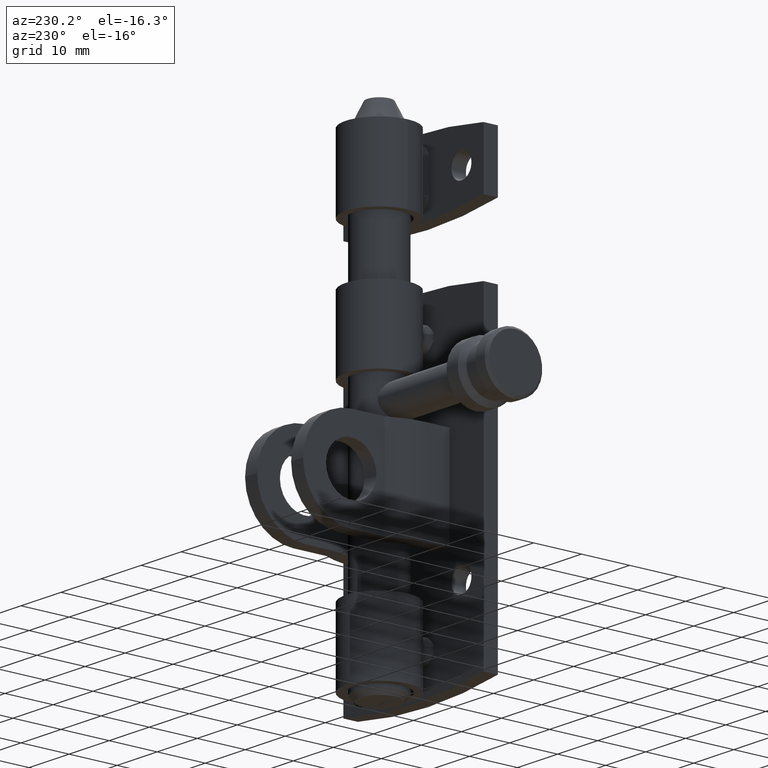
[diagram: clean part render]
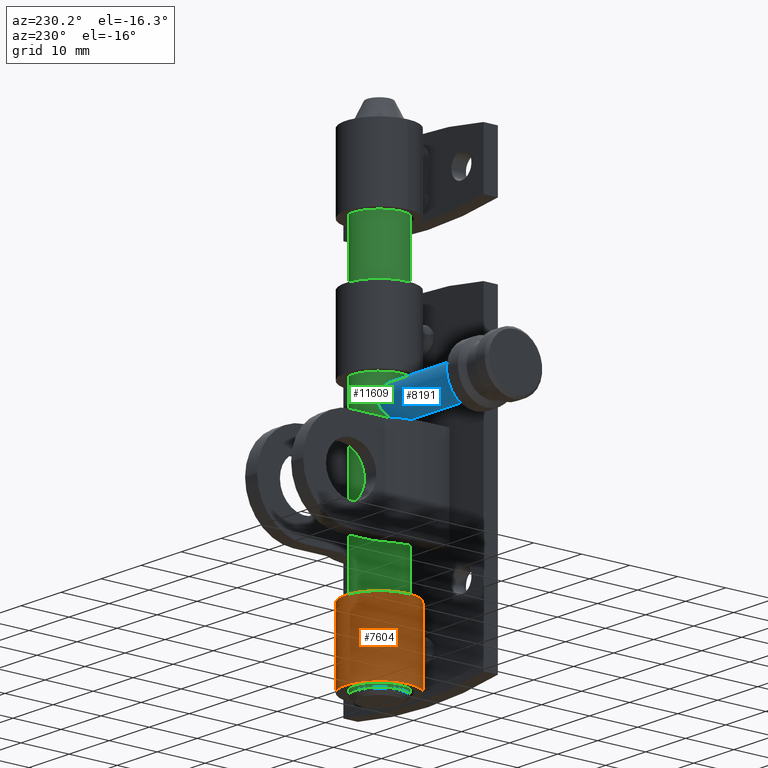
[diagram: same view with three faces highlighted in distinct colors, each labeled with its STEP entity id]
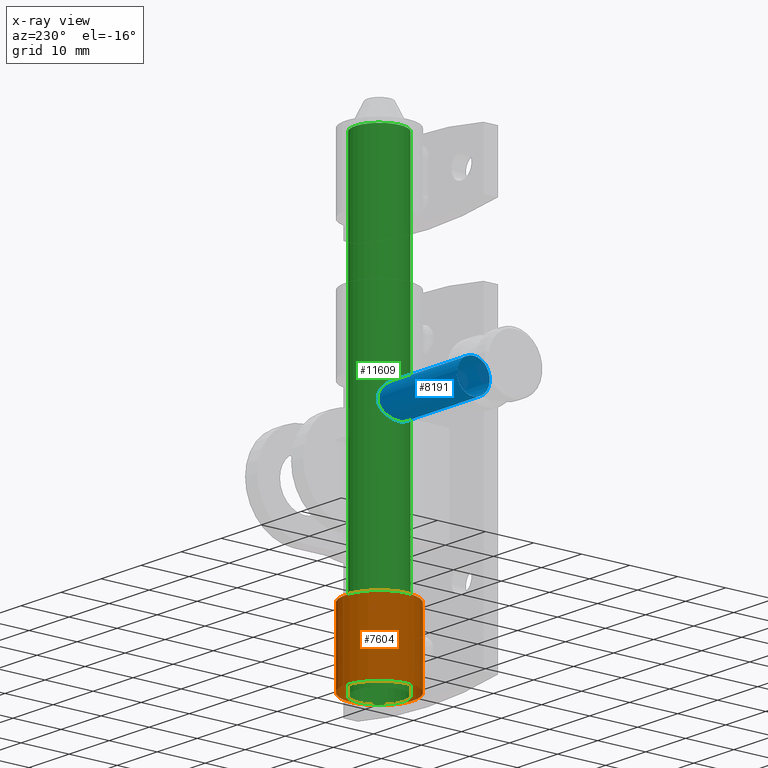
[diagram: x-ray of the same camera — body ghosted, the three highlighted faces saturated]
A machine part, auxiliary view with three faces highlighted in distinct colors.
The next image is the same camera in x-ray (body ghosted, the three faces saturated) — at least one of them is partly hidden behind the body in this view.
Their STEP definitions:

[orange] entity #7604 — the highlighted cylindrical surface (bore or boss wall) has radius 7 mm, axis along (0, 0, 1).
#38 = CARTESIAN_POINT ( 'NONE',  ( 2.363585179769313260, 0.5094752459823461699, -28.50000000000001421 ) ) ;
#343 = CARTESIAN_POINT ( 'NONE',  ( -3.458419704824095664, 1.012777841356176767, -28.03980706288667690 ) ) ;
#375 = CARTESIAN_POINT ( 'NONE',  ( 4.280624791019803865, 1.558566044828566755, -26.98556475810323008 ) ) ;
#405 = CARTESIAN_POINT ( 'NONE',  ( -3.559248018156697224, 1.071434367228733864, -24.04949530744585928 ) ) ;
#764 = CARTESIAN_POINT ( 'NONE',  ( -2.224390284590544997, 0.4628253102830562349, -23.50000000000000355 ) ) ;
#1003 = ORIENTED_EDGE ( 'NONE', *, *, #2694, .T. ) ;
#1103 = LINE ( 'NONE', #14857, #10214 ) ;
#1104 = CARTESIAN_POINT ( 'NONE',  ( 3.458419704824096552, 1.012777841356176989, -23.96019293711333376 ) ) ;
#1109 = EDGE_CURVE ( 'NONE', #13167, #7150, #6363, .T. ) ;
#1145 = AXIS2_PLACEMENT_3D ( 'NONE', #3059, #4227, #14735 ) ;
#1203 = EDGE_CURVE ( 'NONE', #13167, #3659, #11703, .T. ) ;
#1455 = CARTESIAN_POINT ( 'NONE',  ( -3.458395220680591908, 1.012763973289264818, -23.96017281296050427 ) ) ;
#1475 = CARTESIAN_POINT ( 'NONE',  ( 3.130135115788539313, 0.8373920727866632774, -28.26634918414662678 ) ) ;
#1508 = CARTESIAN_POINT ( 'NONE',  ( -4.528917503112638521, 1.762500000000001066, -25.50000000000000355 ) ) ;
#1527 = CARTESIAN_POINT ( 'NONE',  ( 3.995513635946405628, 1.349599173450029665, -27.44784056243527814 ) ) ;
#1587 = DIRECTION ( 'NONE',  ( -0.000000000000000000, -0.000000000000000000, 1.000000000000000000 ) ) ;
#1653 = CARTESIAN_POINT ( 'NONE',  ( -2.887851034399280703, 0.7220441376547444001, -28.38026617628249682 ) ) ;
#1945 = VERTEX_POINT ( 'NONE', #9450 ) ;
#2316 = CARTESIAN_POINT ( 'NONE',  ( 2.887851034399280703, 0.7220441376547444001, -23.61973382371750674 ) ) ;
#2513 = CARTESIAN_POINT ( 'NONE',  ( 4.528917503112636744, 1.762500000000000400, -25.50000000000000355 ) ) ;
#2559 = FACE_OUTER_BOUND ( 'NONE', #10187, .T. ) ;
#2625 = CARTESIAN_POINT ( 'NONE',  ( -3.559273528341181603, 1.071449405073602312, -27.95048115225854701 ) ) ;
#2649 = CARTESIAN_POINT ( 'NONE',  ( 2.498334539549156741, 0.5594928337550739705, -28.48433027257622996 ) ) ;
#2694 = EDGE_CURVE ( 'NONE', #14448, #7150, #5086, .T. ) ;
#2722 = DIRECTION ( 'NONE',  ( -0.000000000000000000, -0.000000000000000000, 1.000000000000000000 ) ) ;
#2727 = CARTESIAN_POINT ( 'NONE',  ( -2.498334539549156297, 0.5594928337550738595, -23.51566972742377359 ) ) ;
#2789 = CARTESIAN_POINT ( 'NONE',  ( -4.406517590014707331, 1.658642555726712153, -25.25731105585256486 ) ) ;
#2848 = B_SPLINE_CURVE_WITH_KNOTS ( 'NONE', 3,
 ( #14434, #9313, #375, #1527, #3563, #8542, #14324, #13992, #1475, #9628, #6168, #2649, #38, #7075 ),
 .UNSPECIFIED., .F., .F.,
 ( 4, 2, 2, 2, 2, 2, 4 ),
 ( -8.944272078837966095E-06, 0.0008639785485700239879, 0.001736901369218885830, 0.002173362779543319950, 0.002609824189867754503, 0.003046285600192189056, 0.003482747010516623609 ),
 .UNSPECIFIED. ) ;
#2862 = CARTESIAN_POINT ( 'NONE',  ( -2.224390284590544997, 0.4628253102830562349, -28.50000000000000355 ) ) ;
#2928 = FACE_OUTER_BOUND ( 'NONE', #8429, .T. ) ;
#3059 = CARTESIAN_POINT ( 'NONE',  ( 0.000000000000000000, 7.100000000000000533, -23.50000000000000355 ) ) ;
#3098 = CARTESIAN_POINT ( 'NONE',  ( 0.000000000000000000, 7.100000000000000533, -33.50000000000000000 ) ) ;
#3141 = ORIENTED_EDGE ( 'NONE', *, *, #7304, .T. ) ;
#3226 = VERTEX_POINT ( 'NONE', #8095 ) ;
#3397 = CARTESIAN_POINT ( 'NONE',  ( 4.468276139286970761, 1.711045248891302162, -25.37976308000805759 ) ) ;
#3563 = CARTESIAN_POINT ( 'NONE',  ( 3.837851370702710430, 1.241817941551478954, -27.66471111683637218 ) ) ;
#3659 = VERTEX_POINT ( 'NONE', #2513 ) ;
#3701 = B_SPLINE_CURVE_WITH_KNOTS ( 'NONE', 3,
 ( #8242, #10673, #5125, #6133, #1653, #11998, #11947, #343, #2625, #10779, #9650, #9711, #3785, #6241, #5009, #6348 ),
 .UNSPECIFIED., .F., .F.,
 ( 4, 2, 2, 2, 2, 2, 2, 4 ),
 ( 0.000000000000000000, 0.0004324776792570255313, 0.0008649553585140510627, 0.001297433037771076377, 0.001729910717028101909, 0.002594866075542159693, 0.003027343754799188477, 0.003459821434056217261 ),
 .UNSPECIFIED. ) ;
#3725 = AXIS2_PLACEMENT_3D ( 'NONE', #14447, #1587, #7422 ) ;
#3785 = CARTESIAN_POINT ( 'NONE',  ( -4.276471465520668147, 1.557566174956938054, -26.98255586031591946 ) ) ;
#3840 = DIRECTION ( 'NONE',  ( 0.000000000000000000, 0.000000000000000000, -1.000000000000000000 ) ) ;
#3919 = AXIS2_PLACEMENT_3D ( 'NONE', #13223, #3840, #6187 ) ;
#4049 = VECTOR ( 'NONE', #2722, 1000.000000000000000 ) ;
#4156 = EDGE_CURVE ( 'NONE', #10348, #1945, #2848, .T. ) ;
#4192 = CIRCLE ( 'NONE', #14666, 7.000000000000000888 ) ;
#4221 = ORIENTED_EDGE ( 'NONE', *, *, #4956, .T. ) ;
#4227 = DIRECTION ( 'NONE',  ( 0.000000000000000000, 0.000000000000000000, -1.000000000000000000 ) ) ;
#4268 = DIRECTION ( 'NONE',  ( 1.000000000000000000, 0.000000000000000000, 0.000000000000000000 ) ) ;
#4599 = ORIENTED_EDGE ( 'NONE', *, *, #9192, .F. ) ;
#4714 = CARTESIAN_POINT ( 'NONE',  ( 3.130154462453922370, 0.8374016877908414536, -23.73366136649310931 ) ) ;
#4807 = CARTESIAN_POINT ( 'NONE',  ( 4.528917503112636744, 1.762500000000000400, -26.50000000000000355 ) ) ;
#4902 = VERTEX_POINT ( 'NONE', #9957 ) ;
#4956 = EDGE_CURVE ( 'NONE', #12518, #3226, #3701, .T. ) ;
#4978 = CARTESIAN_POINT ( 'NONE',  ( -3.995513635946405628, 1.349599173450029443, -24.55215943756472896 ) ) ;
#5009 = CARTESIAN_POINT ( 'NONE',  ( -4.468276139287460147, 1.711045248891718273, -26.62023691999236519 ) ) ;
#5010 = EDGE_CURVE ( 'NONE', #1945, #12518, #9749, .T. ) ;
#5020 = CARTESIAN_POINT ( 'NONE',  ( -2.363585179769311484, 0.5094752459823458368, -23.49999999999999645 ) ) ;
#5086 = B_SPLINE_CURVE_WITH_KNOTS ( 'NONE', 3,
 ( #1508, #2789, #7490, #4978, #7392, #405, #1455, #14349, #10839, #6200, #12010, #2727, #5020, #764 ),
 .UNSPECIFIED., .F., .F.,
 ( 4, 2, 2, 2, 2, 2, 4 ),
 ( -8.944272078844935482E-06, 0.0008639785485700187838, 0.001736901369218882361, 0.002173362779543317348, 0.002609824189867752334, 0.003046285600192187321, 0.003482747010516622308 ),
 .UNSPECIFIED. ) ;
#5125 = CARTESIAN_POINT ( 'NONE',  ( -2.498340916448145599, 0.5594952002343208664, -28.48432953796115541 ) ) ;
#5270 = CARTESIAN_POINT ( 'NONE',  ( 0.000000000000000000, 7.100000000000000533, -18.50000000000000355 ) ) ;
#5787 = CARTESIAN_POINT ( 'NONE',  ( 3.559273528341181603, 1.071449405073602534, -24.04951884774146365 ) ) ;
#6066 = ORIENTED_EDGE ( 'NONE', *, *, #14534, .F. ) ;
#6133 = CARTESIAN_POINT ( 'NONE',  ( -2.759887783115243298, 0.6654891564961926687, -28.42479396939429037 ) ) ;
#6168 = CARTESIAN_POINT ( 'NONE',  ( 2.759875598197542246, 0.6654840006664615171, -28.42479745993019691 ) ) ;
#6187 = DIRECTION ( 'NONE',  ( -1.000000000000000000, 0.000000000000000000, 0.000000000000000000 ) ) ;
#6200 = CARTESIAN_POINT ( 'NONE',  ( -2.887835988744141602, 0.7220373789742225989, -23.61972820379545013 ) ) ;
#6241 = CARTESIAN_POINT ( 'NONE',  ( -4.405669549760810710, 1.659700677471473984, -26.74262983835808782 ) ) ;
#6348 = CARTESIAN_POINT ( 'NONE',  ( -4.528917503112638521, 1.762500000000001066, -26.50000000000000355 ) ) ;
#6363 = CIRCLE ( 'NONE', #1145, 7.000000000000000888 ) ;
#6789 = CARTESIAN_POINT ( 'NONE',  ( 2.224390284590544997, 0.4628253102830562349, -23.50000000000000355 ) ) ;
#6964 = CARTESIAN_POINT ( 'NONE',  ( 4.405669549760809822, 1.659700677471473540, -25.25737016164192283 ) ) ;
#7009 = CARTESIAN_POINT ( 'NONE',  ( 2.498340916448144711, 0.5594952002343208664, -23.51567046203884814 ) ) ;
#7046 = ORIENTED_EDGE ( 'NONE', *, *, #4156, .T. ) ;
#7075 = CARTESIAN_POINT ( 'NONE',  ( 2.224390284590544997, 0.4628253102830562349, -28.50000000000000355 ) ) ;
#7120 = CARTESIAN_POINT ( 'NONE',  ( 3.995542786044163464, 1.349619360536337576, -24.55220116446224665 ) ) ;
#7150 = VERTEX_POINT ( 'NONE', #9671 ) ;
#7151 = LINE ( 'NONE', #13177, #4049 ) ;
#7304 = EDGE_CURVE ( 'NONE', #11639, #11639, #10405, .T. ) ;
#7312 = CARTESIAN_POINT ( 'NONE',  ( -4.528917503112638521, 1.762500000000001066, -25.50000000000000355 ) ) ;
#7392 = CARTESIAN_POINT ( 'NONE',  ( -3.837851370702711318, 1.241817941551479842, -24.33528888316363137 ) ) ;
#7422 = DIRECTION ( 'NONE',  ( 1.000000000000000000, 0.000000000000000000, 0.000000000000000000 ) ) ;
#7490 = CARTESIAN_POINT ( 'NONE',  ( -4.280624791019802977, 1.558566044828565866, -25.01443524189676992 ) ) ;
#7604 = ADVANCED_FACE ( 'NONE', ( #14968, #2559, #2928 ), #8799, .T. ) ;
#8048 = CARTESIAN_POINT ( 'NONE',  ( 4.209377954758648954, 1.506347602196852042, -24.89891924608211582 ) ) ;
#8095 = CARTESIAN_POINT ( 'NONE',  ( -4.528917503112638521, 1.762500000000001066, -26.50000000000000355 ) ) ;
#8242 = CARTESIAN_POINT ( 'NONE',  ( -2.224390284590544997, 0.4628253102830562349, -28.50000000000000355 ) ) ;
#8390 = EDGE_LOOP ( 'NONE', ( #10716, #4221, #12720, #1003, #8678, #8635, #4599, #7046 ) ) ;
#8429 = EDGE_LOOP ( 'NONE', ( #3141 ) ) ;
#8542 = CARTESIAN_POINT ( 'NONE',  ( 3.559248018156698112, 1.071434367228733642, -27.95050469255413006 ) ) ;
#8635 = ORIENTED_EDGE ( 'NONE', *, *, #1203, .T. ) ;
#8678 = ORIENTED_EDGE ( 'NONE', *, *, #1109, .F. ) ;
#8799 = CYLINDRICAL_SURFACE ( 'NONE', #3725, 7.000000000000000000 ) ;
#9192 = EDGE_CURVE ( 'NONE', #10348, #3659, #1103, .T. ) ;
#9205 = CARTESIAN_POINT ( 'NONE',  ( 4.528917503112636744, 1.762500000000000400, -25.50000000000000355 ) ) ;
#9254 = CARTESIAN_POINT ( 'NONE',  ( 3.837879440794320640, 1.241836234921464666, -24.33532293532686097 ) ) ;
#9313 = CARTESIAN_POINT ( 'NONE',  ( 4.406517590013753427, 1.658642555725903023, -26.74268894414661091 ) ) ;
#9450 = CARTESIAN_POINT ( 'NONE',  ( 2.224390284590544997, 0.4628253102830562349, -28.50000000000000355 ) ) ;
#9628 = CARTESIAN_POINT ( 'NONE',  ( 2.887835988744141602, 0.7220373789742227100, -28.38027179620454632 ) ) ;
#9650 = CARTESIAN_POINT ( 'NONE',  ( -3.995542786044163464, 1.349619360536338242, -27.44779883553776045 ) ) ;
#9671 = CARTESIAN_POINT ( 'NONE',  ( -2.224390284590544997, 0.4628253102830562349, -23.50000000000000355 ) ) ;
#9711 = CARTESIAN_POINT ( 'NONE',  ( -4.209377954758648066, 1.506347602196852264, -27.10108075391789129 ) ) ;
#9749 = CIRCLE ( 'NONE', #3919, 7.000000000000000888 ) ;
#9957 = CARTESIAN_POINT ( 'NONE',  ( 7.000000000000000888, 7.100000000000000533, -18.50000000000000355 ) ) ;
#10158 = DIRECTION ( 'NONE',  ( 1.000000000000000000, 0.000000000000000000, 0.000000000000000000 ) ) ;
#10187 = EDGE_LOOP ( 'NONE', ( #6066 ) ) ;
#10214 = VECTOR ( 'NONE', #14804, 1000.000000000000000 ) ;
#10348 = VERTEX_POINT ( 'NONE', #4807 ) ;
#10372 = CARTESIAN_POINT ( 'NONE',  ( 2.759887783115242410, 0.6654891564961924466, -23.57520603060572029 ) ) ;
#10405 = CIRCLE ( 'NONE', #13108, 7.000000000000000888 ) ;
#10673 = CARTESIAN_POINT ( 'NONE',  ( -2.363588472702890186, 0.5094763495798555475, -28.50000000000000711 ) ) ;
#10716 = ORIENTED_EDGE ( 'NONE', *, *, #5010, .T. ) ;
#10779 = CARTESIAN_POINT ( 'NONE',  ( -3.837879440794323305, 1.241836234921464222, -27.66467706467314258 ) ) ;
#10839 = CARTESIAN_POINT ( 'NONE',  ( -3.130135115788537981, 0.8373920727866628333, -23.73365081585338388 ) ) ;
#11007 = DIRECTION ( 'NONE',  ( -0.000000000000000000, -0.000000000000000000, 1.000000000000000000 ) ) ;
#11201 = DIRECTION ( 'NONE',  ( -0.000000000000000000, -0.000000000000000000, 1.000000000000000000 ) ) ;
#11639 = VERTEX_POINT ( 'NONE', #13427 ) ;
#11703 = B_SPLINE_CURVE_WITH_KNOTS ( 'NONE', 3,
 ( #15131, #15083, #7009, #10372, #2316, #4714, #14038, #1104, #5787, #9254, #7120, #8048, #14094, #6964, #3397, #9205 ),
 .UNSPECIFIED., .F., .F.,
 ( 4, 2, 2, 2, 2, 2, 2, 4 ),
 ( 0.000000000000000000, 0.0004324776792570246640, 0.0008649553585140493280, 0.001297433037771073992, 0.001729910717028098656, 0.002594866075542155790, 0.003027343754799184574, 0.003459821434056214225 ),
 .UNSPECIFIED. ) ;
#11947 = CARTESIAN_POINT ( 'NONE',  ( -3.243790894517545098, 0.8957465319310968788, -28.19763183188897315 ) ) ;
#11998 = CARTESIAN_POINT ( 'NONE',  ( -3.130154462453921926, 0.8374016877908414536, -28.26633863350690845 ) ) ;
#12010 = CARTESIAN_POINT ( 'NONE',  ( -2.759875598197542690, 0.6654840006664615171, -23.57520254006980309 ) ) ;
#12518 = VERTEX_POINT ( 'NONE', #2862 ) ;
#12720 = ORIENTED_EDGE ( 'NONE', *, *, #13641, .T. ) ;
#13108 = AXIS2_PLACEMENT_3D ( 'NONE', #3098, #11201, #4268 ) ;
#13167 = VERTEX_POINT ( 'NONE', #6789 ) ;
#13177 = CARTESIAN_POINT ( 'NONE',  ( -4.528917503112638521, 1.762500000000001066, -28.50000000000000355 ) ) ;
#13223 = CARTESIAN_POINT ( 'NONE',  ( 0.000000000000000000, 7.100000000000000533, -28.50000000000000355 ) ) ;
#13427 = CARTESIAN_POINT ( 'NONE',  ( 7.000000000000000888, 7.100000000000000533, -33.50000000000000000 ) ) ;
#13641 = EDGE_CURVE ( 'NONE', #3226, #14448, #7151, .T. ) ;
#13992 = CARTESIAN_POINT ( 'NONE',  ( 3.243769682286799405, 0.8957354831061201672, -28.19764530957558080 ) ) ;
#14038 = CARTESIAN_POINT ( 'NONE',  ( 3.243790894517544654, 0.8957465319310969898, -23.80236816811103751 ) ) ;
#14094 = CARTESIAN_POINT ( 'NONE',  ( 4.276471465520670812, 1.557566174956939165, -25.01744413968409830 ) ) ;
#14324 = CARTESIAN_POINT ( 'NONE',  ( 3.458395220680591908, 1.012763973289265262, -28.03982718703949928 ) ) ;
#14349 = CARTESIAN_POINT ( 'NONE',  ( -3.243769682286799849, 0.8957354831061199452, -23.80235469042442276 ) ) ;
#14434 = CARTESIAN_POINT ( 'NONE',  ( 4.528917503112636744, 1.762500000000000400, -26.50000000000000355 ) ) ;
#14447 = CARTESIAN_POINT ( 'NONE',  ( 0.000000000000000000, 7.100000000000000533, -28.50000000000000355 ) ) ;
#14448 = VERTEX_POINT ( 'NONE', #7312 ) ;
#14534 = EDGE_CURVE ( 'NONE', #4902, #4902, #4192, .T. ) ;
#14666 = AXIS2_PLACEMENT_3D ( 'NONE', #5270, #11007, #10158 ) ;
#14735 = DIRECTION ( 'NONE',  ( -1.000000000000000000, 0.000000000000000000, 0.000000000000000000 ) ) ;
#14804 = DIRECTION ( 'NONE',  ( -0.000000000000000000, -0.000000000000000000, 1.000000000000000000 ) ) ;
#14857 = CARTESIAN_POINT ( 'NONE',  ( 4.528917503112636744, 1.762500000000000400, -28.50000000000000355 ) ) ;
#14968 = FACE_BOUND ( 'NONE', #8390, .T. ) ;
#15083 = CARTESIAN_POINT ( 'NONE',  ( 2.363588472702888854, 0.5094763495798554365, -23.50000000000000711 ) ) ;
#15131 = CARTESIAN_POINT ( 'NONE',  ( 2.224390284590544997, 0.4628253102830562349, -23.50000000000000355 ) ) ;

[blue] entity #8191 — the highlighted cylindrical surface (bore or boss wall) has radius 3.4 mm, axis along (1, 0, 0).
#435 = CARTESIAN_POINT ( 'NONE',  ( -4.874957418596305381, 1.131198138601541725, 4.213970025762326266 ) ) ;
#447 = DIRECTION ( 'NONE',  ( 1.000000000000000000, -0.000000000000000000, -8.673617379884034239E-17 ) ) ;
#485 = CARTESIAN_POINT ( 'NONE',  ( -4.921394783119087180, 0.9117452428491202854, 4.283489538329996016 ) ) ;
#588 = CARTESIAN_POINT ( 'NONE',  ( -3.830215981836359695, 3.215830662909556992, -0.1255042906919718870 ) ) ;
#609 = CARTESIAN_POINT ( 'NONE',  ( -5.000000000000000000, 0.000000000000000000, 4.400000000000001243 ) ) ;
#637 = CARTESIAN_POINT ( 'NONE',  ( -4.463013636203264412, 2.260821978755102268, 3.548475396443623087 ) ) ;
#1075 = FACE_OUTER_BOUND ( 'NONE', #14973, .T. ) ;
#1097 = DIRECTION ( 'NONE',  ( 1.000000000000000000, 0.000000000000000000, 0.000000000000000000 ) ) ;
#1314 = CARTESIAN_POINT ( 'NONE',  ( -4.463896047814731816, -2.259087381862913801, 3.550015800280201805 ) ) ;
#1633 = CARTESIAN_POINT ( 'NONE',  ( -4.297468514958267427, 2.561624144829053762, -1.246016527856671274 ) ) ;
#1690 = CARTESIAN_POINT ( 'NONE',  ( -5.000000000000002665, 0.2329609725452599645, 4.400000000000002132 ) ) ;
#1750 = CARTESIAN_POINT ( 'NONE',  ( -4.983715102774083583, 0.4625902869184228550, 4.376180262164516499 ) ) ;
#1798 = CARTESIAN_POINT ( 'NONE',  ( -3.829407978739574059, 3.216783278331381446, 2.122750460771059888 ) ) ;
#2609 = CARTESIAN_POINT ( 'NONE',  ( -4.922255314198023868, -0.9066795800726903387, 4.284774756514576843 ) ) ;
#2756 = CARTESIAN_POINT ( 'NONE',  ( -3.665721719630803843, -3.400365352206738301, 0.7747280518212498190 ) ) ;
#2813 = CARTESIAN_POINT ( 'NONE',  ( -3.671994493952710936, -3.393629230116336881, 1.237818409375149198 ) ) ;
#2865 = CARTESIAN_POINT ( 'NONE',  ( -3.692909169591667151, 3.370856375870184607, 1.458903130547261506 ) ) ;
#2912 = CARTESIAN_POINT ( 'NONE',  ( -4.695963490153290287, 1.728023729967157918, -1.936240088309941321 ) ) ;
#2968 = CARTESIAN_POINT ( 'NONE',  ( -4.545110475742990097, 2.092914875061985036, 3.688411828255908187 ) ) ;
#3550 = CARTESIAN_POINT ( 'NONE',  ( -24.00000000000000000, 0.000000000000000000, 1.000000000000000888 ) ) ;
#3607 = B_SPLINE_CURVE_WITH_KNOTS ( 'NONE', 3,
 ( #6007, #3879, #7198, #2609, #6225, #3671, #3770, #14275, #1314, #10658, #7300, #9631, #5000, #14327, #14641, #11023, #12149, #2813, #5159, #2756, #9746, #6275, #3933, #7567, #14585, #5264, #13406, #9888, #6375, #4132, #12311, #14484, #10918, #7609, #12203, #10971, #5312, #13309, #2912, #5213, #8807, #1633, #13455, #12100, #5104, #588, #9791, #9937, #13362, #14438, #6326, #2865, #3981, #7459, #1798, #4081, #6428, #7516, #14533, #637, #2968, #6478, #11119, #435, #485, #1750, #1690, #8656 ),
 .UNSPECIFIED., .T., .F.,
 ( 4, 2, 2, 2, 2, 2, 2, 2, 2, 2, 2, 2, 2, 2, 2, 2, 2, 2, 2, 2, 2, 2, 2, 2, 2, 2, 2, 2, 2, 2, 2, 2, 2, 4 ),
 ( 0.000000000000000000, 0.0006877040900504314408, 0.001375408180100862882, 0.002063112270151294322, 0.002750816360201724896, 0.003438520450252155036, 0.004126224540302585175, 0.004813928630353015749, 0.005157780675378230602, 0.005501632720403445455, 0.006189336810453876028, 0.006877040900504306602, 0.007564744990554738910, 0.008252449080605170351, 0.009627857260706031498, 0.01031556135075646467, 0.01100326544080689611, 0.01169096953085732582, 0.01237867362090775726, 0.01306637771095818870, 0.01375408180100862014, 0.01444178589105905332, 0.01512948998110948476, 0.01581719407115991446, 0.01650489816121034764, 0.01684875020623556249, 0.01719260225126077735, 0.01788030634131121052, 0.01856801043136164023, 0.01925571452141206993, 0.01994341861146250311, 0.02063112270151293628, 0.02131882679156336599, 0.02200653088161379570 ),
 .UNSPECIFIED. ) ;
#3671 = CARTESIAN_POINT ( 'NONE',  ( -4.762748110996279927, -1.536726921280141323, 4.041082305124672480 ) ) ;
#3770 = CARTESIAN_POINT ( 'NONE',  ( -4.695128795818938272, -1.730429400171103582, 3.934933939864406760 ) ) ;
#3879 = CARTESIAN_POINT ( 'NONE',  ( -5.000000000000000888, -0.2329609725452611024, 4.400000000000003020 ) ) ;
#3933 = CARTESIAN_POINT ( 'NONE',  ( -3.827327385497118151, -3.219266759904773512, -0.1158666039776143075 ) ) ;
#3981 = CARTESIAN_POINT ( 'NONE',  ( -3.708764749716440434, 3.353505546321379871, 1.571747617763845417 ) ) ;
#4081 = CARTESIAN_POINT ( 'NONE',  ( -3.966952043923485771, 3.045546192162906785, 2.527387196592938867 ) ) ;
#4132 = CARTESIAN_POINT ( 'NONE',  ( -4.874406492816964587, -1.134215123204374454, -2.213164485782416868 ) ) ;
#4550 = VERTEX_POINT ( 'NONE', #609 ) ;
#5000 = CARTESIAN_POINT ( 'NONE',  ( -3.969036356657404507, -3.042840442882130070, 2.532738526162308546 ) ) ;
#5104 = CARTESIAN_POINT ( 'NONE',  ( -3.968056119501283341, 3.044117598338212272, -0.5302531843988950166 ) ) ;
#5159 = CARTESIAN_POINT ( 'NONE',  ( -3.666236046899778778, -3.399810775907674998, 1.120808455015086968 ) ) ;
#5213 = CARTESIAN_POINT ( 'NONE',  ( -4.546874999883629087, 2.089034908185007477, -1.691376045801189942 ) ) ;
#5223 = AXIS2_PLACEMENT_3D ( 'NONE', #3550, #1097, #9249 ) ;
#5264 = CARTESIAN_POINT ( 'NONE',  ( -4.208183005524949394, -2.704099236599310174, -1.072158816420181848 ) ) ;
#5312 = CARTESIAN_POINT ( 'NONE',  ( -4.877969432489316581, 1.118634706343823115, -2.218541504296313249 ) ) ;
#6007 = CARTESIAN_POINT ( 'NONE',  ( -5.000000000000001776, -1.626303258728256651E-16, 4.400000000000003020 ) ) ;
#6225 = CARTESIAN_POINT ( 'NONE',  ( -4.876111183734555432, -1.126427504655575396, 4.215722670549334694 ) ) ;
#6275 = CARTESIAN_POINT ( 'NONE',  ( -3.769039468971596030, -3.286046560299193953, 0.09749281076522359202 ) ) ;
#6326 = CARTESIAN_POINT ( 'NONE',  ( -3.671480255931103720, 3.394183785817582510, 1.229741633283521152 ) ) ;
#6333 = CARTESIAN_POINT ( 'NONE',  ( -23.50000000000000000, 0.000000000000000000, 1.000000000000000888 ) ) ;
#6375 = CARTESIAN_POINT ( 'NONE',  ( -4.701250145076493858, -1.755954864199241294, -1.946201342150705171 ) ) ;
#6428 = CARTESIAN_POINT ( 'NONE',  ( -4.045313275171010581, 2.942266879160378767, 2.717586126127270241 ) ) ;
#6478 = CARTESIAN_POINT ( 'NONE',  ( -4.694830252200771881, 1.731153030204091392, 3.934443732392425286 ) ) ;
#6615 = EDGE_LOOP ( 'NONE', ( #13882 ) ) ;
#6953 = EDGE_CURVE ( 'NONE', #4550, #4550, #3607, .T. ) ;
#7102 = CYLINDRICAL_SURFACE ( 'NONE', #5223, 3.399999999999999911 ) ;
#7198 = CARTESIAN_POINT ( 'NONE',  ( -4.983813167021317270, -0.4607293731643465340, 4.376320705540243772 ) ) ;
#7300 = CARTESIAN_POINT ( 'NONE',  ( -4.210958542421791684, -2.699802700985910686, 3.077780424972932138 ) ) ;
#7459 = CARTESIAN_POINT ( 'NONE',  ( -3.769885535063975723, 3.285073016586597561, 1.905469174628373841 ) ) ;
#7516 = CARTESIAN_POINT ( 'NONE',  ( -4.210758925334551428, 2.700185763090084734, 3.077506518323027684 ) ) ;
#7567 = CARTESIAN_POINT ( 'NONE',  ( -3.965277665725706058, -3.047734637546529957, -0.5232039680881301891 ) ) ;
#7609 = CARTESIAN_POINT ( 'NONE',  ( -5.000390732784104841, 0.2211047200063694096, -2.400574608048523739 ) ) ;
#8191 = ADVANCED_FACE ( 'NONE', ( #10563, #1075 ), #7102, .T. ) ;
#8197 = VERTEX_POINT ( 'NONE', #8684 ) ;
#8606 = DIRECTION ( 'NONE',  ( 0.000000000000000000, 0.000000000000000000, -1.000000000000000000 ) ) ;
#8656 = CARTESIAN_POINT ( 'NONE',  ( -5.000000000000001776, -1.626303258728256651E-16, 4.400000000000003020 ) ) ;
#8684 = CARTESIAN_POINT ( 'NONE',  ( -23.50000000000000000, 0.000000000000000000, -2.399999999999999023 ) ) ;
#8807 = CARTESIAN_POINT ( 'NONE',  ( -4.464828974563904040, 2.257311702960726585, -1.551676385918296264 ) ) ;
#9249 = DIRECTION ( 'NONE',  ( 0.000000000000000000, 0.000000000000000000, -1.000000000000000000 ) ) ;
#9384 = EDGE_CURVE ( 'NONE', #8197, #8197, #12435, .T. ) ;
#9631 = CARTESIAN_POINT ( 'NONE',  ( -4.047094960410432485, -2.939749794058390986, 2.721620535131120455 ) ) ;
#9746 = CARTESIAN_POINT ( 'NONE',  ( -3.687313735182399466, -3.377495808058847526, 0.5470725338207653721 ) ) ;
#9791 = CARTESIAN_POINT ( 'NONE',  ( -3.771448889749635214, 3.283297622124292214, 0.08753780384730180941 ) ) ;
#9888 = CARTESIAN_POINT ( 'NONE',  ( -4.544897433453513713, -2.112947532952950347, -1.698583497347208926 ) ) ;
#9937 = CARTESIAN_POINT ( 'NONE',  ( -3.688593347579280923, 3.376114500373866623, 0.5368786171853420219 ) ) ;
#10563 = FACE_OUTER_BOUND ( 'NONE', #6615, .T. ) ;
#10658 = CARTESIAN_POINT ( 'NONE',  ( -4.297331364066739212, -2.561793682558471730, 3.245722491443327140 ) ) ;
#10918 = CARTESIAN_POINT ( 'NONE',  ( -4.999594247026743155, -0.2384368738666442222, -2.399403303418729649 ) ) ;
#10971 = CARTESIAN_POINT ( 'NONE',  ( -4.923046851763436926, 0.9030244168149812456, -2.285961424293883493 ) ) ;
#11023 = CARTESIAN_POINT ( 'NONE',  ( -3.710005008152463368, -3.352135398001002908, 1.579651940693777012 ) ) ;
#11119 = CARTESIAN_POINT ( 'NONE',  ( -4.761888663134494770, 1.539232088352475936, 4.039733069442174695 ) ) ;
#11461 = AXIS2_PLACEMENT_3D ( 'NONE', #6333, #447, #8606 ) ;
#12100 = CARTESIAN_POINT ( 'NONE',  ( -4.048025879301579089, 2.938498875070453042, -0.7238406162458470572 ) ) ;
#12149 = CARTESIAN_POINT ( 'NONE',  ( -3.693927643770009261, -3.369742049135328710, 1.467028339211838617 ) ) ;
#12203 = CARTESIAN_POINT ( 'NONE',  ( -4.984745086136798342, 0.4518404898379199675, -2.377696811594337767 ) ) ;
#12311 = CARTESIAN_POINT ( 'NONE',  ( -4.919976567149565660, -0.9191151960476184879, -2.281366456100913709 ) ) ;
#12435 = CIRCLE ( 'NONE', #11461, 3.399999999999999911 ) ;
#13309 = CARTESIAN_POINT ( 'NONE',  ( -4.764360296376809245, 1.531927007675423225, -2.043608493921241998 ) ) ;
#13362 = CARTESIAN_POINT ( 'NONE',  ( -3.666271963224222219, 3.399772049264532470, 0.7649395970262192757 ) ) ;
#13406 = CARTESIAN_POINT ( 'NONE',  ( -4.293046303105287897, -2.569029666780843435, -1.237590582186914201 ) ) ;
#13455 = CARTESIAN_POINT ( 'NONE',  ( -4.212491753822392937, 2.697443675457185108, -1.080913195389278103 ) ) ;
#13882 = ORIENTED_EDGE ( 'NONE', *, *, #9384, .T. ) ;
#14275 = CARTESIAN_POINT ( 'NONE',  ( -4.544828831208461928, -2.093597672266818588, 3.687949390710972608 ) ) ;
#14327 = CARTESIAN_POINT ( 'NONE',  ( -3.831215061609070105, -3.214641303941574879, 2.128825335210957181 ) ) ;
#14438 = CARTESIAN_POINT ( 'NONE',  ( -3.665957108126108643, 3.400111543052777296, 1.112549277211788423 ) ) ;
#14484 = CARTESIAN_POINT ( 'NONE',  ( -4.982776943083679910, -0.4720975538807118399, -2.374798136548282201 ) ) ;
#14533 = CARTESIAN_POINT ( 'NONE',  ( -4.296441007944374668, 2.563279423280337976, 3.244023499005356914 ) ) ;
#14551 = ORIENTED_EDGE ( 'NONE', *, *, #6953, .F. ) ;
#14585 = CARTESIAN_POINT ( 'NONE',  ( -4.044681319792643670, -2.943044326999924021, -0.7159501540424879629 ) ) ;
#14641 = CARTESIAN_POINT ( 'NONE',  ( -3.771535755541950419, -3.283186499859453544, 1.912095829760358967 ) ) ;
#14973 = EDGE_LOOP ( 'NONE', ( #14551 ) ) ;

[green] entity #11609 — the highlighted cylindrical surface (bore or boss wall) has radius 5 mm, axis along (-0, 0, 1).
#435 = CARTESIAN_POINT ( 'NONE',  ( -4.874957418596305381, 1.131198138601541725, 4.213970025762326266 ) ) ;
#460 = FACE_OUTER_BOUND ( 'NONE', #14221, .T. ) ;
#485 = CARTESIAN_POINT ( 'NONE',  ( -4.921394783119087180, 0.9117452428491202854, 4.283489538329996016 ) ) ;
#530 = CIRCLE ( 'NONE', #15035, 5.000000000000000000 ) ;
#588 = CARTESIAN_POINT ( 'NONE',  ( -3.830215981836359695, 3.215830662909556992, -0.1255042906919718870 ) ) ;
#609 = CARTESIAN_POINT ( 'NONE',  ( -5.000000000000000000, 0.000000000000000000, 4.400000000000001243 ) ) ;
#637 = CARTESIAN_POINT ( 'NONE',  ( -4.463013636203264412, 2.260821978755102268, 3.548475396443623087 ) ) ;
#1314 = CARTESIAN_POINT ( 'NONE',  ( -4.463896047814731816, -2.259087381862913801, 3.550015800280201805 ) ) ;
#1339 = CARTESIAN_POINT ( 'NONE',  ( 5.000000000000000000, 0.000000000000000000, 48.99999999999997158 ) ) ;
#1388 = EDGE_CURVE ( 'NONE', #13491, #13491, #530, .T. ) ;
#1633 = CARTESIAN_POINT ( 'NONE',  ( -4.297468514958267427, 2.561624144829053762, -1.246016527856671274 ) ) ;
#1690 = CARTESIAN_POINT ( 'NONE',  ( -5.000000000000002665, 0.2329609725452599645, 4.400000000000002132 ) ) ;
#1750 = CARTESIAN_POINT ( 'NONE',  ( -4.983715102774083583, 0.4625902869184228550, 4.376180262164516499 ) ) ;
#1798 = CARTESIAN_POINT ( 'NONE',  ( -3.829407978739574059, 3.216783278331381446, 2.122750460771059888 ) ) ;
#2036 = ORIENTED_EDGE ( 'NONE', *, *, #6953, .T. ) ;
#2481 = DIRECTION ( 'NONE',  ( -0.000000000000000000, -0.000000000000000000, 1.000000000000000000 ) ) ;
#2609 = CARTESIAN_POINT ( 'NONE',  ( -4.922255314198023868, -0.9066795800726903387, 4.284774756514576843 ) ) ;
#2756 = CARTESIAN_POINT ( 'NONE',  ( -3.665721719630803843, -3.400365352206738301, 0.7747280518212498190 ) ) ;
#2813 = CARTESIAN_POINT ( 'NONE',  ( -3.671994493952710936, -3.393629230116336881, 1.237818409375149198 ) ) ;
#2865 = CARTESIAN_POINT ( 'NONE',  ( -3.692909169591667151, 3.370856375870184607, 1.458903130547261506 ) ) ;
#2912 = CARTESIAN_POINT ( 'NONE',  ( -4.695963490153290287, 1.728023729967157918, -1.936240088309941321 ) ) ;
#2968 = CARTESIAN_POINT ( 'NONE',  ( -4.545110475742990097, 2.092914875061985036, 3.688411828255908187 ) ) ;
#3276 = DIRECTION ( 'NONE',  ( 0.000000000000000000, 0.000000000000000000, -1.000000000000000000 ) ) ;
#3536 = CYLINDRICAL_SURFACE ( 'NONE', #5074, 5.000000000000000000 ) ;
#3607 = B_SPLINE_CURVE_WITH_KNOTS ( 'NONE', 3,
 ( #6007, #3879, #7198, #2609, #6225, #3671, #3770, #14275, #1314, #10658, #7300, #9631, #5000, #14327, #14641, #11023, #12149, #2813, #5159, #2756, #9746, #6275, #3933, #7567, #14585, #5264, #13406, #9888, #6375, #4132, #12311, #14484, #10918, #7609, #12203, #10971, #5312, #13309, #2912, #5213, #8807, #1633, #13455, #12100, #5104, #588, #9791, #9937, #13362, #14438, #6326, #2865, #3981, #7459, #1798, #4081, #6428, #7516, #14533, #637, #2968, #6478, #11119, #435, #485, #1750, #1690, #8656 ),
 .UNSPECIFIED., .T., .F.,
 ( 4, 2, 2, 2, 2, 2, 2, 2, 2, 2, 2, 2, 2, 2, 2, 2, 2, 2, 2, 2, 2, 2, 2, 2, 2, 2, 2, 2, 2, 2, 2, 2, 2, 4 ),
 ( 0.000000000000000000, 0.0006877040900504314408, 0.001375408180100862882, 0.002063112270151294322, 0.002750816360201724896, 0.003438520450252155036, 0.004126224540302585175, 0.004813928630353015749, 0.005157780675378230602, 0.005501632720403445455, 0.006189336810453876028, 0.006877040900504306602, 0.007564744990554738910, 0.008252449080605170351, 0.009627857260706031498, 0.01031556135075646467, 0.01100326544080689611, 0.01169096953085732582, 0.01237867362090775726, 0.01306637771095818870, 0.01375408180100862014, 0.01444178589105905332, 0.01512948998110948476, 0.01581719407115991446, 0.01650489816121034764, 0.01684875020623556249, 0.01719260225126077735, 0.01788030634131121052, 0.01856801043136164023, 0.01925571452141206993, 0.01994341861146250311, 0.02063112270151293628, 0.02131882679156336599, 0.02200653088161379570 ),
 .UNSPECIFIED. ) ;
#3671 = CARTESIAN_POINT ( 'NONE',  ( -4.762748110996279927, -1.536726921280141323, 4.041082305124672480 ) ) ;
#3770 = CARTESIAN_POINT ( 'NONE',  ( -4.695128795818938272, -1.730429400171103582, 3.934933939864406760 ) ) ;
#3806 = CARTESIAN_POINT ( 'NONE',  ( 0.000000000000000000, 0.000000000000000000, 50.00000000000000000 ) ) ;
#3879 = CARTESIAN_POINT ( 'NONE',  ( -5.000000000000000888, -0.2329609725452611024, 4.400000000000003020 ) ) ;
#3933 = CARTESIAN_POINT ( 'NONE',  ( -3.827327385497118151, -3.219266759904773512, -0.1158666039776143075 ) ) ;
#3981 = CARTESIAN_POINT ( 'NONE',  ( -3.708764749716440434, 3.353505546321379871, 1.571747617763845417 ) ) ;
#4081 = CARTESIAN_POINT ( 'NONE',  ( -3.966952043923485771, 3.045546192162906785, 2.527387196592938867 ) ) ;
#4132 = CARTESIAN_POINT ( 'NONE',  ( -4.874406492816964587, -1.134215123204374454, -2.213164485782416868 ) ) ;
#4550 = VERTEX_POINT ( 'NONE', #609 ) ;
#4838 = DIRECTION ( 'NONE',  ( -0.000000000000000000, -0.000000000000000000, -1.000000000000000000 ) ) ;
#4920 = CARTESIAN_POINT ( 'NONE',  ( 0.000000000000000000, 0.000000000000000000, -45.00000000000001421 ) ) ;
#5000 = CARTESIAN_POINT ( 'NONE',  ( -3.969036356657404507, -3.042840442882130070, 2.532738526162308546 ) ) ;
#5074 = AXIS2_PLACEMENT_3D ( 'NONE', #3806, #4838, #5998 ) ;
#5104 = CARTESIAN_POINT ( 'NONE',  ( -3.968056119501283341, 3.044117598338212272, -0.5302531843988950166 ) ) ;
#5129 = CARTESIAN_POINT ( 'NONE',  ( 5.000000000000000000, 0.000000000000000000, -45.00000000000001421 ) ) ;
#5159 = CARTESIAN_POINT ( 'NONE',  ( -3.666236046899778778, -3.399810775907674998, 1.120808455015086968 ) ) ;
#5213 = CARTESIAN_POINT ( 'NONE',  ( -4.546874999883629087, 2.089034908185007477, -1.691376045801189942 ) ) ;
#5264 = CARTESIAN_POINT ( 'NONE',  ( -4.208183005524949394, -2.704099236599310174, -1.072158816420181848 ) ) ;
#5312 = CARTESIAN_POINT ( 'NONE',  ( -4.877969432489316581, 1.118634706343823115, -2.218541504296313249 ) ) ;
#5659 = EDGE_LOOP ( 'NONE', ( #11225 ) ) ;
#5660 = CARTESIAN_POINT ( 'NONE',  ( 0.000000000000000000, 0.000000000000000000, 48.99999999999997158 ) ) ;
#5712 = FACE_BOUND ( 'NONE', #12776, .T. ) ;
#5998 = DIRECTION ( 'NONE',  ( -1.000000000000000000, 0.000000000000000000, 0.000000000000000000 ) ) ;
#6007 = CARTESIAN_POINT ( 'NONE',  ( -5.000000000000001776, -1.626303258728256651E-16, 4.400000000000003020 ) ) ;
#6225 = CARTESIAN_POINT ( 'NONE',  ( -4.876111183734555432, -1.126427504655575396, 4.215722670549334694 ) ) ;
#6275 = CARTESIAN_POINT ( 'NONE',  ( -3.769039468971596030, -3.286046560299193953, 0.09749281076522359202 ) ) ;
#6326 = CARTESIAN_POINT ( 'NONE',  ( -3.671480255931103720, 3.394183785817582510, 1.229741633283521152 ) ) ;
#6375 = CARTESIAN_POINT ( 'NONE',  ( -4.701250145076493858, -1.755954864199241294, -1.946201342150705171 ) ) ;
#6428 = CARTESIAN_POINT ( 'NONE',  ( -4.045313275171010581, 2.942266879160378767, 2.717586126127270241 ) ) ;
#6478 = CARTESIAN_POINT ( 'NONE',  ( -4.694830252200771881, 1.731153030204091392, 3.934443732392425286 ) ) ;
#6953 = EDGE_CURVE ( 'NONE', #4550, #4550, #3607, .T. ) ;
#7198 = CARTESIAN_POINT ( 'NONE',  ( -4.983813167021317270, -0.4607293731643465340, 4.376320705540243772 ) ) ;
#7300 = CARTESIAN_POINT ( 'NONE',  ( -4.210958542421791684, -2.699802700985910686, 3.077780424972932138 ) ) ;
#7459 = CARTESIAN_POINT ( 'NONE',  ( -3.769885535063975723, 3.285073016586597561, 1.905469174628373841 ) ) ;
#7516 = CARTESIAN_POINT ( 'NONE',  ( -4.210758925334551428, 2.700185763090084734, 3.077506518323027684 ) ) ;
#7567 = CARTESIAN_POINT ( 'NONE',  ( -3.965277665725706058, -3.047734637546529957, -0.5232039680881301891 ) ) ;
#7609 = CARTESIAN_POINT ( 'NONE',  ( -5.000390732784104841, 0.2211047200063694096, -2.400574608048523739 ) ) ;
#8417 = CIRCLE ( 'NONE', #9814, 5.000000000000000000 ) ;
#8656 = CARTESIAN_POINT ( 'NONE',  ( -5.000000000000001776, -1.626303258728256651E-16, 4.400000000000003020 ) ) ;
#8807 = CARTESIAN_POINT ( 'NONE',  ( -4.464828974563904040, 2.257311702960726585, -1.551676385918296264 ) ) ;
#9631 = CARTESIAN_POINT ( 'NONE',  ( -4.047094960410432485, -2.939749794058390986, 2.721620535131120455 ) ) ;
#9746 = CARTESIAN_POINT ( 'NONE',  ( -3.687313735182399466, -3.377495808058847526, 0.5470725338207653721 ) ) ;
#9791 = CARTESIAN_POINT ( 'NONE',  ( -3.771448889749635214, 3.283297622124292214, 0.08753780384730180941 ) ) ;
#9814 = AXIS2_PLACEMENT_3D ( 'NONE', #4920, #2481, #10678 ) ;
#9888 = CARTESIAN_POINT ( 'NONE',  ( -4.544897433453513713, -2.112947532952950347, -1.698583497347208926 ) ) ;
#9937 = CARTESIAN_POINT ( 'NONE',  ( -3.688593347579280923, 3.376114500373866623, 0.5368786171853420219 ) ) ;
#10014 = EDGE_CURVE ( 'NONE', #12409, #12409, #8417, .T. ) ;
#10295 = DIRECTION ( 'NONE',  ( 1.000000000000000000, 0.000000000000000000, 0.000000000000000000 ) ) ;
#10658 = CARTESIAN_POINT ( 'NONE',  ( -4.297331364066739212, -2.561793682558471730, 3.245722491443327140 ) ) ;
#10678 = DIRECTION ( 'NONE',  ( 1.000000000000000000, 0.000000000000000000, 0.000000000000000000 ) ) ;
#10918 = CARTESIAN_POINT ( 'NONE',  ( -4.999594247026743155, -0.2384368738666442222, -2.399403303418729649 ) ) ;
#10971 = CARTESIAN_POINT ( 'NONE',  ( -4.923046851763436926, 0.9030244168149812456, -2.285961424293883493 ) ) ;
#11023 = CARTESIAN_POINT ( 'NONE',  ( -3.710005008152463368, -3.352135398001002908, 1.579651940693777012 ) ) ;
#11119 = CARTESIAN_POINT ( 'NONE',  ( -4.761888663134494770, 1.539232088352475936, 4.039733069442174695 ) ) ;
#11225 = ORIENTED_EDGE ( 'NONE', *, *, #10014, .T. ) ;
#11609 = ADVANCED_FACE ( 'NONE', ( #13010, #460, #5712 ), #3536, .T. ) ;
#12100 = CARTESIAN_POINT ( 'NONE',  ( -4.048025879301579089, 2.938498875070453042, -0.7238406162458470572 ) ) ;
#12149 = CARTESIAN_POINT ( 'NONE',  ( -3.693927643770009261, -3.369742049135328710, 1.467028339211838617 ) ) ;
#12203 = CARTESIAN_POINT ( 'NONE',  ( -4.984745086136798342, 0.4518404898379199675, -2.377696811594337767 ) ) ;
#12311 = CARTESIAN_POINT ( 'NONE',  ( -4.919976567149565660, -0.9191151960476184879, -2.281366456100913709 ) ) ;
#12409 = VERTEX_POINT ( 'NONE', #5129 ) ;
#12776 = EDGE_LOOP ( 'NONE', ( #2036 ) ) ;
#13010 = FACE_OUTER_BOUND ( 'NONE', #5659, .T. ) ;
#13268 = ORIENTED_EDGE ( 'NONE', *, *, #1388, .T. ) ;
#13309 = CARTESIAN_POINT ( 'NONE',  ( -4.764360296376809245, 1.531927007675423225, -2.043608493921241998 ) ) ;
#13362 = CARTESIAN_POINT ( 'NONE',  ( -3.666271963224222219, 3.399772049264532470, 0.7649395970262192757 ) ) ;
#13406 = CARTESIAN_POINT ( 'NONE',  ( -4.293046303105287897, -2.569029666780843435, -1.237590582186914201 ) ) ;
#13455 = CARTESIAN_POINT ( 'NONE',  ( -4.212491753822392937, 2.697443675457185108, -1.080913195389278103 ) ) ;
#13491 = VERTEX_POINT ( 'NONE', #1339 ) ;
#14221 = EDGE_LOOP ( 'NONE', ( #13268 ) ) ;
#14275 = CARTESIAN_POINT ( 'NONE',  ( -4.544828831208461928, -2.093597672266818588, 3.687949390710972608 ) ) ;
#14327 = CARTESIAN_POINT ( 'NONE',  ( -3.831215061609070105, -3.214641303941574879, 2.128825335210957181 ) ) ;
#14438 = CARTESIAN_POINT ( 'NONE',  ( -3.665957108126108643, 3.400111543052777296, 1.112549277211788423 ) ) ;
#14484 = CARTESIAN_POINT ( 'NONE',  ( -4.982776943083679910, -0.4720975538807118399, -2.374798136548282201 ) ) ;
#14533 = CARTESIAN_POINT ( 'NONE',  ( -4.296441007944374668, 2.563279423280337976, 3.244023499005356914 ) ) ;
#14585 = CARTESIAN_POINT ( 'NONE',  ( -4.044681319792643670, -2.943044326999924021, -0.7159501540424879629 ) ) ;
#14641 = CARTESIAN_POINT ( 'NONE',  ( -3.771535755541950419, -3.283186499859453544, 1.912095829760358967 ) ) ;
#15035 = AXIS2_PLACEMENT_3D ( 'NONE', #5660, #3276, #10295 ) ;